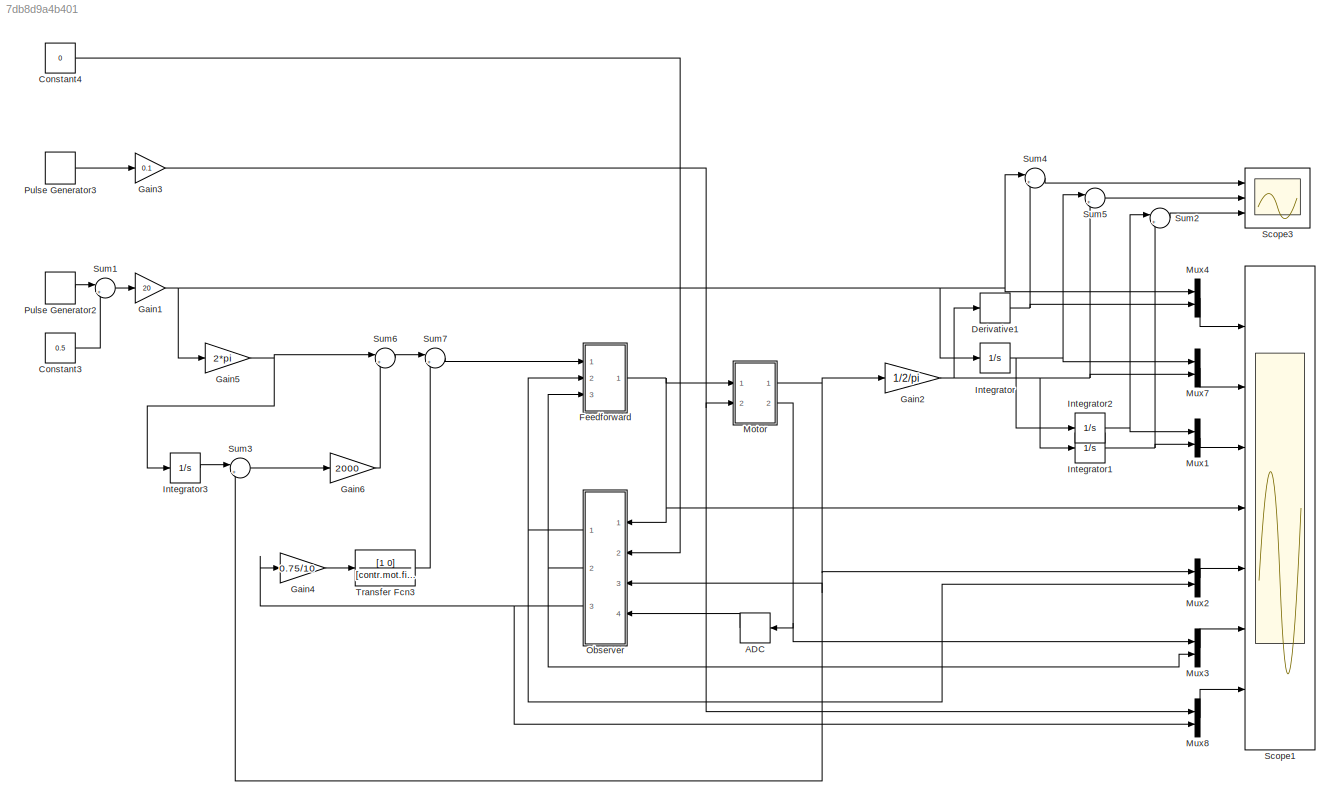
MODEL slx_7db8d9a4b401
KIND model
BLOCK [TransportDelay] ADC
  DelayTime = param.adc.retard
  Ports = [1, 1]
BLOCK [Constant] Constant3
  Value = 0.5
BLOCK [Constant] Constant4
  Value = 0
BLOCK [Derivative] Derivative1
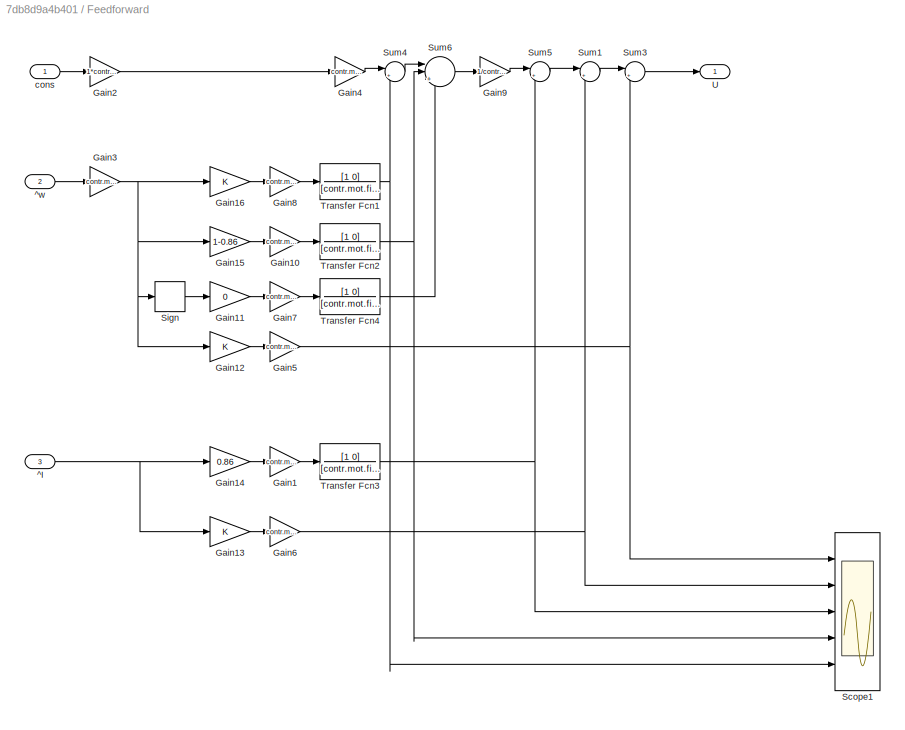
BLOCK [SubSystem] Feedforward
  Ports = [3, 1]
  RequestExecContextInheritance = off
BLOCK [Gain] Feedforward/Gain1
  Gain = contr.mot.L
  OutDataTypeStr = Inherit: Inherit via internal rule
  ParamDataTypeStr = Inherit: Inherit via internal rule
  SaturateOnIntegerOverflow = off
BLOCK [Gain] Feedforward/Gain10
  Gain = contr.mot.fv*contr.mot.L
  OutDataTypeStr = Inherit: Inherit via internal rule
  ParamDataTypeStr = Inherit: Inherit via internal rule
  SaturateOnIntegerOverflow = off
BLOCK [Gain] Feedforward/Gain11
  Gain = 0
  OutDataTypeStr = Inherit: Inherit via internal rule
  ParamDataTypeStr = Inherit: Inherit via internal rule
  SaturateOnIntegerOverflow = off
BLOCK [Gain] Feedforward/Gain12
  OutDataTypeStr = Inherit: Inherit via internal rule
  ParamDataTypeStr = Inherit: Inherit via internal rule
  SaturateOnIntegerOverflow = off
BLOCK [Gain] Feedforward/Gain13
  OutDataTypeStr = Inherit: Inherit via internal rule
  ParamDataTypeStr = Inherit: Inherit via internal rule
  SaturateOnIntegerOverflow = off
BLOCK [Gain] Feedforward/Gain14
  Gain = 0.86
  OutDataTypeStr = Inherit: Inherit via internal rule
  ParamDataTypeStr = Inherit: Inherit via internal rule
  SaturateOnIntegerOverflow = off
BLOCK [Gain] Feedforward/Gain15
  Gain = 1-0.86
  OutDataTypeStr = Inherit: Inherit via internal rule
  ParamDataTypeStr = Inherit: Inherit via internal rule
  SaturateOnIntegerOverflow = off
BLOCK [Gain] Feedforward/Gain16
  OutDataTypeStr = Inherit: Inherit via internal rule
  ParamDataTypeStr = Inherit: Inherit via internal rule
  SaturateOnIntegerOverflow = off
BLOCK [Gain] Feedforward/Gain2
  Gain = 1*contr.mot.rr/contr.mot.rn
  OutDataTypeStr = Inherit: Inherit via internal rule
  ParamDataTypeStr = Inherit: Inherit via internal rule
  SaturateOnIntegerOverflow = off
BLOCK [Gain] Feedforward/Gain3
  Gain = contr.mot.rr
  OutDataTypeStr = Inherit: Inherit via internal rule
  ParamDataTypeStr = Inherit: Inherit via internal rule
  SaturateOnIntegerOverflow = off
BLOCK [Gain] Feedforward/Gain4
  Gain = contr.mot.J
  OutDataTypeStr = Inherit: Inherit via internal rule
  ParamDataTypeStr = Inherit: Inherit via internal rule
  SaturateOnIntegerOverflow = off
BLOCK [Gain] Feedforward/Gain5
  Gain = contr.mot.Ke
  OutDataTypeStr = Inherit: Inherit via internal rule
  ParamDataTypeStr = Inherit: Inherit via internal rule
  SaturateOnIntegerOverflow = off
BLOCK [Gain] Feedforward/Gain6
  Gain = contr.mot.R
  OutDataTypeStr = Inherit: Inherit via internal rule
  ParamDataTypeStr = Inherit: Inherit via internal rule
  SaturateOnIntegerOverflow = off
BLOCK [Gain] Feedforward/Gain7
  Gain = contr.mot.fs*contr.mot.L
  OutDataTypeStr = Inherit: Inherit via internal rule
  ParamDataTypeStr = Inherit: Inherit via internal rule
  SaturateOnIntegerOverflow = off
BLOCK [Gain] Feedforward/Gain8
  Gain = contr.mot.J
  OutDataTypeStr = Inherit: Inherit via internal rule
  ParamDataTypeStr = Inherit: Inherit via internal rule
  SaturateOnIntegerOverflow = off
BLOCK [Gain] Feedforward/Gain9
  Gain = 1/contr.mot.Kc
  OutDataTypeStr = Inherit: Inherit via internal rule
  ParamDataTypeStr = Inherit: Inherit via internal rule
  SaturateOnIntegerOverflow = off
BLOCK [Scope] Feedforward/Scope1
  Floating = off
  MaxDataPoints = 500000
  NumInputPorts = 5
  Ports = [5]
  SaveName = ScopeData1
  ShowLegends = off
  TimeRange = 3
  YMax = 15~10~15000~0.03~15
  YMin = -5~-10~-15000~-0.03~-15
BLOCK [Signum] Feedforward/Sign
  ZeroCross = off
BLOCK [Sum] Feedforward/Sum1
  IconShape = round
  InputSameDT = off
  Inputs = |++
  OutDataTypeStr = Inherit: Inherit via internal rule
  Ports = [2, 1]
  SaturateOnIntegerOverflow = off
BLOCK [Sum] Feedforward/Sum3
  IconShape = round
  InputSameDT = off
  Inputs = |++
  OutDataTypeStr = Inherit: Inherit via internal rule
  Ports = [2, 1]
  SaturateOnIntegerOverflow = off
BLOCK [Sum] Feedforward/Sum4
  IconShape = round
  InputSameDT = off
  Inputs = |+-
  OutDataTypeStr = Inherit: Inherit via internal rule
  Ports = [2, 1]
  SaturateOnIntegerOverflow = off
BLOCK [Sum] Feedforward/Sum5
  IconShape = round
  InputSameDT = off
  Inputs = |++
  OutDataTypeStr = Inherit: Inherit via internal rule
  Ports = [2, 1]
  SaturateOnIntegerOverflow = off
BLOCK [Sum] Feedforward/Sum6
  IconShape = round
  InputSameDT = off
  Inputs = ||+++
  OutDataTypeStr = Inherit: Inherit via internal rule
  Ports = [3, 1]
  SaturateOnIntegerOverflow = off
BLOCK [TransferFcn] Feedforward/Transfer Fcn1
  Denominator = [contr.mot.filter 1]
  Numerator = [1 0]
BLOCK [TransferFcn] Feedforward/Transfer Fcn2
  Denominator = [contr.mot.filter 1]
  Numerator = [1 0]
BLOCK [TransferFcn] Feedforward/Transfer Fcn3
  Denominator = [contr.mot.filter 1]
  Numerator = [1 0]
BLOCK [TransferFcn] Feedforward/Transfer Fcn4
  Denominator = [contr.mot.filter 1]
  Numerator = [1 0]
BLOCK [Outport] Feedforward/U
  IconDisplay = Port number
BLOCK [Inport] Feedforward/^I
  IconDisplay = Port number
  Port = 3
BLOCK [Inport] Feedforward/^w
  IconDisplay = Port number
  Port = 2
BLOCK [Inport] Feedforward/cons
  IconDisplay = Port number
BLOCK [Gain] Gain1
  Gain = 20
  OutDataTypeStr = Inherit: Inherit via internal rule
  ParamDataTypeStr = Inherit: Inherit via internal rule
  SaturateOnIntegerOverflow = off
BLOCK [Gain] Gain2
  Gain = 1/2/pi
  OutDataTypeStr = Inherit: Inherit via internal rule
  ParamDataTypeStr = Inherit: Inherit via internal rule
  SaturateOnIntegerOverflow = off
BLOCK [Gain] Gain3
  Gain = 0.1
  OutDataTypeStr = Inherit: Inherit via internal rule
  ParamDataTypeStr = Inherit: Inherit via internal rule
  SaturateOnIntegerOverflow = off
BLOCK [Gain] Gain4
  Gain = 0.75/10
  OutDataTypeStr = Inherit: Inherit via internal rule
  ParamDataTypeStr = Inherit: Inherit via internal rule
  SaturateOnIntegerOverflow = off
BLOCK [Gain] Gain5
  Gain = 2*pi
  OutDataTypeStr = Inherit: Inherit via internal rule
  ParamDataTypeStr = Inherit: Inherit via internal rule
  SaturateOnIntegerOverflow = off
BLOCK [Gain] Gain6
  Gain = 2000
  OutDataTypeStr = Inherit: Inherit via internal rule
  ParamDataTypeStr = Inherit: Inherit via internal rule
  SaturateOnIntegerOverflow = off
BLOCK [Integrator] Integrator
  Ports = [1, 1]
BLOCK [Integrator] Integrator1
  Ports = [1, 1]
BLOCK [Integrator] Integrator2
  Ports = [1, 1]
BLOCK [Integrator] Integrator3
  Ports = [1, 1]
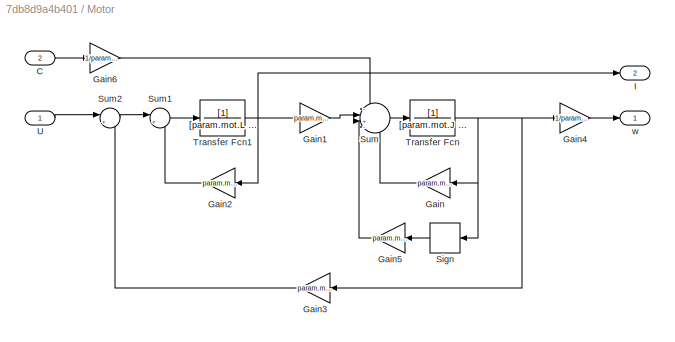
BLOCK [SubSystem] Motor
  Ports = [2, 2]
  RequestExecContextInheritance = off
BLOCK [Inport] Motor/C
  IconDisplay = Port number
  Port = 2
BLOCK [Gain] Motor/Gain
  Gain = param.mot.fv
  OutDataTypeStr = Inherit: Inherit via internal rule
  ParamDataTypeStr = Inherit: Inherit via internal rule
  SaturateOnIntegerOverflow = off
BLOCK [Gain] Motor/Gain1
  Gain = param.mot.Kc
  OutDataTypeStr = Inherit: Inherit via internal rule
  ParamDataTypeStr = Inherit: Inherit via internal rule
  SaturateOnIntegerOverflow = off
BLOCK [Gain] Motor/Gain2
  Gain = param.mot.R
  OutDataTypeStr = Inherit: Inherit via internal rule
  ParamDataTypeStr = Inherit: Inherit via internal rule
  SaturateOnIntegerOverflow = off
BLOCK [Gain] Motor/Gain3
  Gain = param.mot.Ke
  OutDataTypeStr = Inherit: Inherit via internal rule
  ParamDataTypeStr = Inherit: Inherit via internal rule
  SaturateOnIntegerOverflow = off
BLOCK [Gain] Motor/Gain4
  Gain = 1/param.mot.rr
  OutDataTypeStr = Inherit: Inherit via internal rule
  ParamDataTypeStr = Inherit: Inherit via internal rule
  SaturateOnIntegerOverflow = off
BLOCK [Gain] Motor/Gain5
  Gain = param.mot.fs
  OutDataTypeStr = Inherit: Inherit via internal rule
  ParamDataTypeStr = Inherit: Inherit via internal rule
  SaturateOnIntegerOverflow = off
BLOCK [Gain] Motor/Gain6
  Gain = 1/param.mot.rr/param.mot.rn
  OutDataTypeStr = Inherit: Inherit via internal rule
  ParamDataTypeStr = Inherit: Inherit via internal rule
  SaturateOnIntegerOverflow = off
BLOCK [Outport] Motor/I
  IconDisplay = Port number
  Port = 2
BLOCK [Signum] Motor/Sign
  ZeroCross = off
BLOCK [Sum] Motor/Sum
  IconShape = round
  InputSameDT = off
  Inputs = -|+--
  OutDataTypeStr = Inherit: Inherit via internal rule
  Ports = [4, 1]
  SaturateOnIntegerOverflow = off
BLOCK [Sum] Motor/Sum1
  IconShape = round
  InputSameDT = off
  Inputs = |+-
  OutDataTypeStr = Inherit: Inherit via internal rule
  Ports = [2, 1]
  SaturateOnIntegerOverflow = off
BLOCK [Sum] Motor/Sum2
  IconShape = round
  InputSameDT = off
  Inputs = |+-
  OutDataTypeStr = Inherit: Inherit via internal rule
  Ports = [2, 1]
  SaturateOnIntegerOverflow = off
BLOCK [TransferFcn] Motor/Transfer Fcn
  Denominator = [param.mot.J 0]
BLOCK [TransferFcn] Motor/Transfer Fcn1
  Denominator = [param.mot.L 0]
BLOCK [Inport] Motor/U
  IconDisplay = Port number
BLOCK [Outport] Motor/w
  IconDisplay = Port number
BLOCK [Mux] Mux1
  DisplayOption = bar
  Inputs = 2
  Ports = [2, 1]
BLOCK [Mux] Mux2
  DisplayOption = bar
  Inputs = 2
  Ports = [2, 1]
BLOCK [Mux] Mux3
  DisplayOption = bar
  Inputs = 2
  Ports = [2, 1]
BLOCK [Mux] Mux4
  DisplayOption = bar
  Inputs = 2
  Ports = [2, 1]
BLOCK [Mux] Mux7
  DisplayOption = bar
  Inputs = 2
  Ports = [2, 1]
BLOCK [Mux] Mux8
  DisplayOption = bar
  Inputs = 2
  Ports = [2, 1]
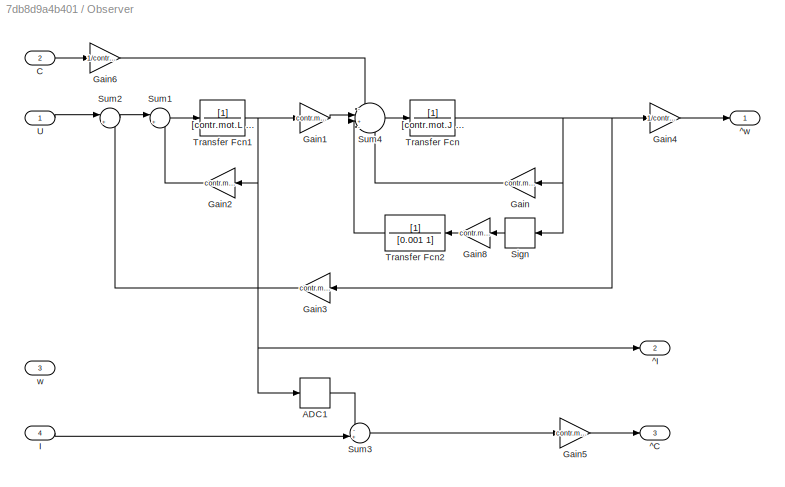
BLOCK [SubSystem] Observer
  Ports = [4, 3]
  RequestExecContextInheritance = off
BLOCK [TransportDelay] Observer/ADC1
  DelayTime = contr.adc.retard
  Ports = [1, 1]
BLOCK [Inport] Observer/C
  IconDisplay = Port number
  Port = 2
BLOCK [Gain] Observer/Gain
  Gain = contr.mot.fv
  OutDataTypeStr = Inherit: Inherit via internal rule
  ParamDataTypeStr = Inherit: Inherit via internal rule
  SaturateOnIntegerOverflow = off
BLOCK [Gain] Observer/Gain1
  Gain = contr.mot.Kc
  OutDataTypeStr = Inherit: Inherit via internal rule
  ParamDataTypeStr = Inherit: Inherit via internal rule
  SaturateOnIntegerOverflow = off
BLOCK [Gain] Observer/Gain2
  Gain = contr.mot.R
  OutDataTypeStr = Inherit: Inherit via internal rule
  ParamDataTypeStr = Inherit: Inherit via internal rule
  SaturateOnIntegerOverflow = off
BLOCK [Gain] Observer/Gain3
  Gain = contr.mot.Ke
  OutDataTypeStr = Inherit: Inherit via internal rule
  ParamDataTypeStr = Inherit: Inherit via internal rule
  SaturateOnIntegerOverflow = off
BLOCK [Gain] Observer/Gain4
  Gain = 1/contr.mot.rr
  OutDataTypeStr = Inherit: Inherit via internal rule
  ParamDataTypeStr = Inherit: Inherit via internal rule
  SaturateOnIntegerOverflow = off
BLOCK [Gain] Observer/Gain5
  Gain = contr.mot.Kc*contr.mot.rr*contr.mot.rn
  OutDataTypeStr = Inherit: Inherit via internal rule
  ParamDataTypeStr = Inherit: Inherit via internal rule
  SaturateOnIntegerOverflow = off
BLOCK [Gain] Observer/Gain6
  Gain = 1/contr.mot.rr/contr.mot.rn
  OutDataTypeStr = Inherit: Inherit via internal rule
  ParamDataTypeStr = Inherit: Inherit via internal rule
  SaturateOnIntegerOverflow = off
BLOCK [Gain] Observer/Gain8
  Gain = contr.mot.fs
  OutDataTypeStr = Inherit: Inherit via internal rule
  ParamDataTypeStr = Inherit: Inherit via internal rule
  SaturateOnIntegerOverflow = off
BLOCK [Inport] Observer/I
  IconDisplay = Port number
  Port = 4
BLOCK [Signum] Observer/Sign
  ZeroCross = off
BLOCK [Sum] Observer/Sum1
  IconShape = round
  InputSameDT = off
  Inputs = |+-
  OutDataTypeStr = Inherit: Inherit via internal rule
  Ports = [2, 1]
  SaturateOnIntegerOverflow = off
BLOCK [Sum] Observer/Sum2
  IconShape = round
  InputSameDT = off
  Inputs = |+-
  OutDataTypeStr = Inherit: Inherit via internal rule
  Ports = [2, 1]
  SaturateOnIntegerOverflow = off
BLOCK [Sum] Observer/Sum3
  IconShape = round
  InputSameDT = off
  Inputs = -+|
  OutDataTypeStr = Inherit: Inherit via internal rule
  Ports = [2, 1]
  SaturateOnIntegerOverflow = off
BLOCK [Sum] Observer/Sum4
  IconShape = round
  InputSameDT = off
  Inputs = -|+--
  OutDataTypeStr = Inherit: Inherit via internal rule
  Ports = [4, 1]
  SaturateOnIntegerOverflow = off
BLOCK [TransferFcn] Observer/Transfer Fcn
  Denominator = [contr.mot.J 0]
BLOCK [TransferFcn] Observer/Transfer Fcn1
  Denominator = [contr.mot.L 0]
BLOCK [TransferFcn] Observer/Transfer Fcn2
  Denominator = [0.001 1]
BLOCK [Inport] Observer/U
  IconDisplay = Port number
BLOCK [Outport] Observer/^C
  IconDisplay = Port number
  Port = 3
BLOCK [Outport] Observer/^I
  IconDisplay = Port number
  Port = 2
BLOCK [Outport] Observer/^w
  IconDisplay = Port number
BLOCK [Inport] Observer/w
  IconDisplay = Port number
  Port = 3
BLOCK [DiscretePulseGenerator] Pulse Generator2
  Period = 1
  PhaseDelay = 0.25/2
  Ports = [0, 1]
  PulseType = Time based
  PulseWidth = 50
BLOCK [DiscretePulseGenerator] Pulse Generator3
  Period = 0.35
  PhaseDelay = 0.3
  Ports = [0, 1]
  PulseType = Time based
  PulseWidth = 50
BLOCK [Scope] Scope1
  Floating = off
  MaxDataPoints = 500000
  NumInputPorts = 7
  Ports = [7]
  SaveName = ScopeData2
  ShowLegends = off
  TimeRange = 3
  YMax = 20~4~4~20~30~2~0.2
  YMin = -20~-2~-2~-10~-10~-1~-0.2
BLOCK [Scope] Scope3
  Floating = off
  MaxDataPoints = 500000
  NumInputPorts = 3
  Ports = [3]
  SaveName = ScopeData3
  ShowLegends = off
  TimeRange = 3
  YMax = 20~0.004~5e-05
  YMin = -20~-0.004~-9.999999999999999e-06
BLOCK [Sum] Sum1
  IconShape = round
  InputSameDT = off
  Inputs = |+-
  OutDataTypeStr = Inherit: Inherit via internal rule
  Ports = [2, 1]
  SaturateOnIntegerOverflow = off
BLOCK [Sum] Sum2
  IconShape = round
  InputSameDT = off
  Inputs = |+-
  OutDataTypeStr = Inherit: Inherit via internal rule
  Ports = [2, 1]
  SaturateOnIntegerOverflow = off
BLOCK [Sum] Sum3
  IconShape = round
  InputSameDT = off
  Inputs = |+-
  OutDataTypeStr = Inherit: Inherit via internal rule
  Ports = [2, 1]
  SaturateOnIntegerOverflow = off
BLOCK [Sum] Sum4
  IconShape = round
  InputSameDT = off
  Inputs = |+-
  OutDataTypeStr = Inherit: Inherit via internal rule
  Ports = [2, 1]
  SaturateOnIntegerOverflow = off
BLOCK [Sum] Sum5
  IconShape = round
  InputSameDT = off
  Inputs = |+-
  OutDataTypeStr = Inherit: Inherit via internal rule
  Ports = [2, 1]
  SaturateOnIntegerOverflow = off
BLOCK [Sum] Sum6
  IconShape = round
  InputSameDT = off
  Inputs = |++
  OutDataTypeStr = Inherit: Inherit via internal rule
  Ports = [2, 1]
  SaturateOnIntegerOverflow = off
BLOCK [Sum] Sum7
  IconShape = round
  InputSameDT = off
  Inputs = |++
  OutDataTypeStr = Inherit: Inherit via internal rule
  Ports = [2, 1]
  SaturateOnIntegerOverflow = off
BLOCK [TransferFcn] Transfer Fcn3
  Denominator = [contr.mot.filter 1]
  Numerator = [1 0]
LINE ADC:1 -> Observer:4
LINE Constant3:1 -> Sum1:2
LINE Constant4:1 -> Observer:2
NET Derivative1:1 -> Mux4:2, Sum4:2
LINE Feedforward/Gain10:1 -> Feedforward/Transfer Fcn2:1
LINE Feedforward/Gain11:1 -> Feedforward/Gain7:1
LINE Feedforward/Gain12:1 -> Feedforward/Gain5:1
LINE Feedforward/Gain13:1 -> Feedforward/Gain6:1
LINE Feedforward/Gain14:1 -> Feedforward/Gain1:1
LINE Feedforward/Gain15:1 -> Feedforward/Gain10:1
LINE Feedforward/Gain16:1 -> Feedforward/Gain8:1
LINE Feedforward/Gain1:1 -> Feedforward/Transfer Fcn3:1
LINE Feedforward/Gain2:1 -> Feedforward/Gain4:1
NET Feedforward/Gain3:1 -> Feedforward/Gain12:1, Feedforward/Gain15:1, Feedforward/Gain16:1, Feedforward/Sign:1
LINE Feedforward/Gain4:1 -> Feedforward/Sum4:1
NET Feedforward/Gain5:1 -> Feedforward/Scope1:1, Feedforward/Sum3:2
NET Feedforward/Gain6:1 -> Feedforward/Scope1:2, Feedforward/Sum1:2
LINE Feedforward/Gain7:1 -> Feedforward/Transfer Fcn4:1
LINE Feedforward/Gain8:1 -> Feedforward/Transfer Fcn1:1
LINE Feedforward/Gain9:1 -> Feedforward/Sum5:1
LINE Feedforward/Sign:1 -> Feedforward/Gain11:1
LINE Feedforward/Sum1:1 -> Feedforward/Sum3:1
LINE Feedforward/Sum3:1 -> Feedforward/U:1
LINE Feedforward/Sum4:1 -> Feedforward/Sum6:1
LINE Feedforward/Sum5:1 -> Feedforward/Sum1:1
LINE Feedforward/Sum6:1 -> Feedforward/Gain9:1
NET Feedforward/Transfer Fcn1:1 -> Feedforward/Scope1:5, Feedforward/Sum4:2
NET Feedforward/Transfer Fcn2:1 -> Feedforward/Scope1:4, Feedforward/Sum6:2
NET Feedforward/Transfer Fcn3:1 -> Feedforward/Scope1:3, Feedforward/Sum5:2
LINE Feedforward/Transfer Fcn4:1 -> Feedforward/Sum6:3
NET Feedforward/^I:1 -> Feedforward/Gain13:1, Feedforward/Gain14:1
LINE Feedforward/^w:1 -> Feedforward/Gain3:1
LINE Feedforward/cons:1 -> Feedforward/Gain2:1
NET Feedforward:1 -> Motor:1, Observer:1, Scope1:4
NET Gain1:1 -> Gain5:1, Integrator:1, Mux4:1, Sum4:1
NET Gain2:1 -> Derivative1:1, Integrator1:1, Mux7:2, Sum5:2
NET Gain3:1 -> Motor:2, Mux8:1
LINE Gain4:1 -> Transfer Fcn3:1
NET Gain5:1 -> Integrator3:1, Sum6:1
LINE Gain6:1 -> Sum6:2
NET Integrator1:1 -> Mux1:2, Sum2:2
NET Integrator2:1 -> Mux1:1, Sum2:1
LINE Integrator3:1 -> Sum3:1
NET Integrator:1 -> Integrator2:1, Mux7:1, Sum5:1
LINE Motor/C:1 -> Motor/Gain6:1
LINE Motor/Gain1:1 -> Motor/Sum:2
LINE Motor/Gain2:1 -> Motor/Sum1:2
LINE Motor/Gain3:1 -> Motor/Sum2:2
LINE Motor/Gain4:1 -> Motor/w:1
LINE Motor/Gain5:1 -> Motor/Sum:3
LINE Motor/Gain6:1 -> Motor/Sum:1
LINE Motor/Gain:1 -> Motor/Sum:4
LINE Motor/Sign:1 -> Motor/Gain5:1
LINE Motor/Sum1:1 -> Motor/Transfer Fcn1:1
LINE Motor/Sum2:1 -> Motor/Sum1:1
LINE Motor/Sum:1 -> Motor/Transfer Fcn:1
NET Motor/Transfer Fcn1:1 -> Motor/Gain1:1, Motor/Gain2:1, Motor/I:1
NET Motor/Transfer Fcn:1 -> Motor/Gain3:1, Motor/Gain4:1, Motor/Gain:1, Motor/Sign:1
LINE Motor/U:1 -> Motor/Sum2:1
NET Motor:1 -> Gain2:1, Mux2:1, Observer:3, Sum3:2
NET Motor:2 -> ADC:1, Mux3:1
LINE Mux1:1 -> Scope1:3
LINE Mux2:1 -> Scope1:5
LINE Mux3:1 -> Scope1:6
LINE Mux4:1 -> Scope1:1
LINE Mux7:1 -> Scope1:2
LINE Mux8:1 -> Scope1:7
LINE Observer/ADC1:1 -> Observer/Sum3:1
LINE Observer/C:1 -> Observer/Gain6:1
LINE Observer/Gain1:1 -> Observer/Sum4:2
LINE Observer/Gain2:1 -> Observer/Sum1:2
LINE Observer/Gain3:1 -> Observer/Sum2:2
LINE Observer/Gain4:1 -> Observer/^w:1
LINE Observer/Gain5:1 -> Observer/^C:1
LINE Observer/Gain6:1 -> Observer/Sum4:1
LINE Observer/Gain8:1 -> Observer/Transfer Fcn2:1
LINE Observer/Gain:1 -> Observer/Sum4:4
LINE Observer/I:1 -> Observer/Sum3:2
LINE Observer/Sign:1 -> Observer/Gain8:1
LINE Observer/Sum1:1 -> Observer/Transfer Fcn1:1
LINE Observer/Sum2:1 -> Observer/Sum1:1
LINE Observer/Sum3:1 -> Observer/Gain5:1
LINE Observer/Sum4:1 -> Observer/Transfer Fcn:1
NET Observer/Transfer Fcn1:1 -> Observer/ADC1:1, Observer/Gain1:1, Observer/Gain2:1, Observer/^I:1
LINE Observer/Transfer Fcn2:1 -> Observer/Sum4:3
NET Observer/Transfer Fcn:1 -> Observer/Gain3:1, Observer/Gain4:1, Observer/Gain:1, Observer/Sign:1
LINE Observer/U:1 -> Observer/Sum2:1
NET Observer:1 -> Feedforward:2, Mux2:2
NET Observer:2 -> Feedforward:3, Mux3:2
NET Observer:3 -> Gain4:1, Mux8:2
LINE Pulse Generator2:1 -> Sum1:1
LINE Pulse Generator3:1 -> Gain3:1
LINE Sum1:1 -> Gain1:1
LINE Sum2:1 -> Scope3:3
LINE Sum3:1 -> Gain6:1
LINE Sum4:1 -> Scope3:1
LINE Sum5:1 -> Scope3:2
LINE Sum6:1 -> Sum7:1
LINE Sum7:1 -> Feedforward:1
LINE Transfer Fcn3:1 -> Sum7:2
note: NET lines group one-source signal fan-out (src -> all destinations, sorted); 1:1 wires keep LINE
